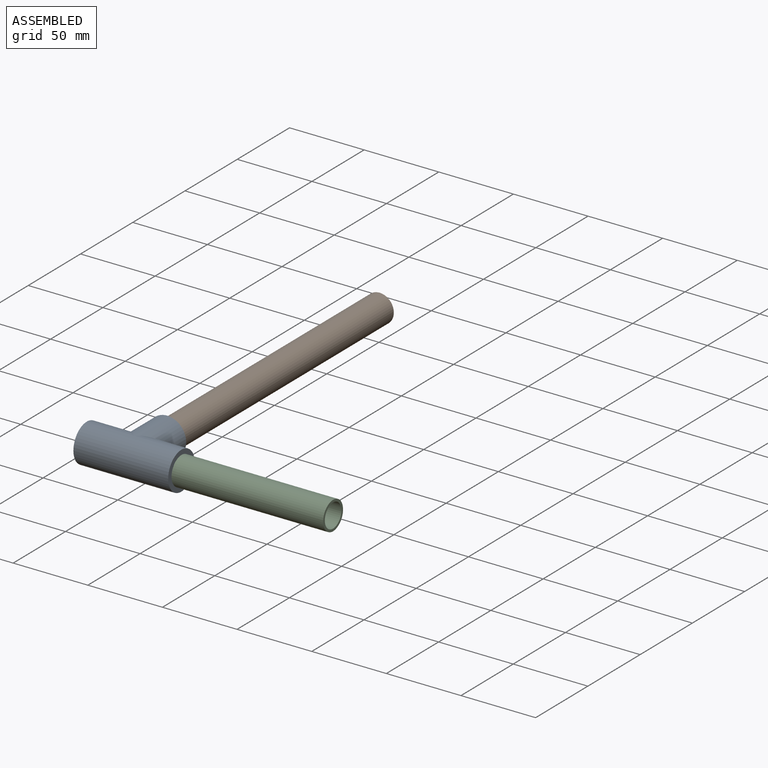
[diagram: assembled view]
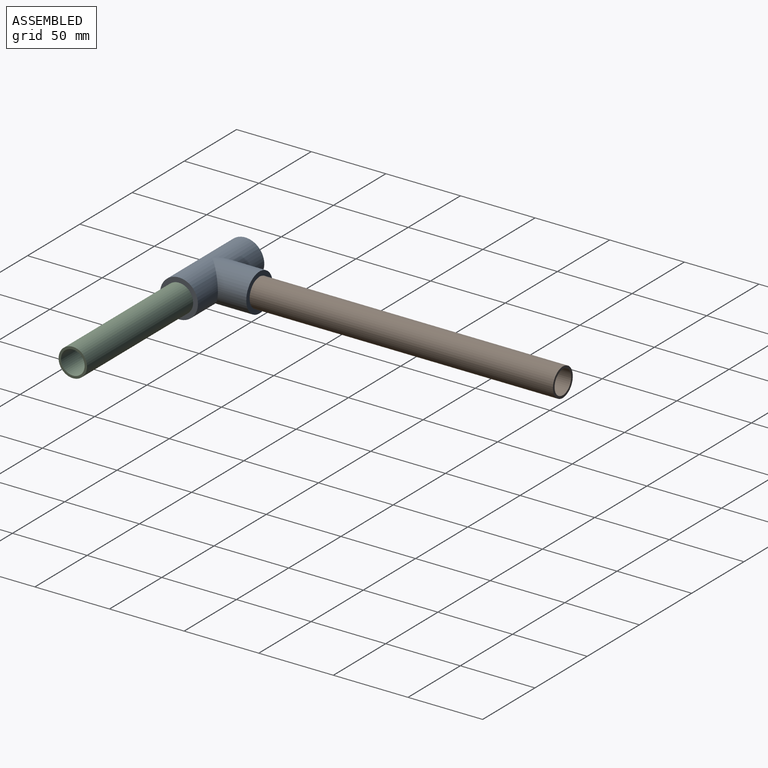
[diagram: assembled view, second angle]
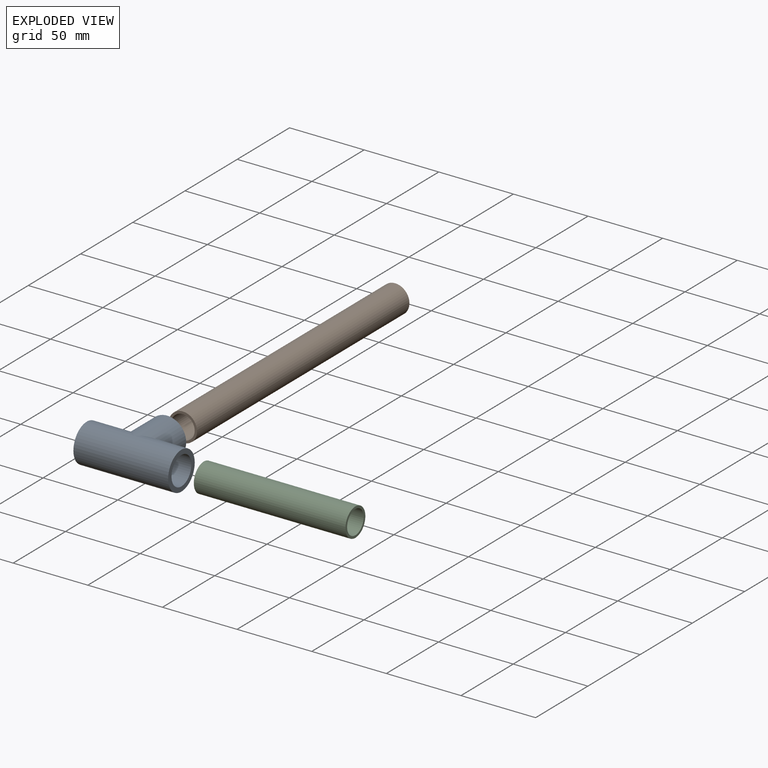
[diagram: exploded view]
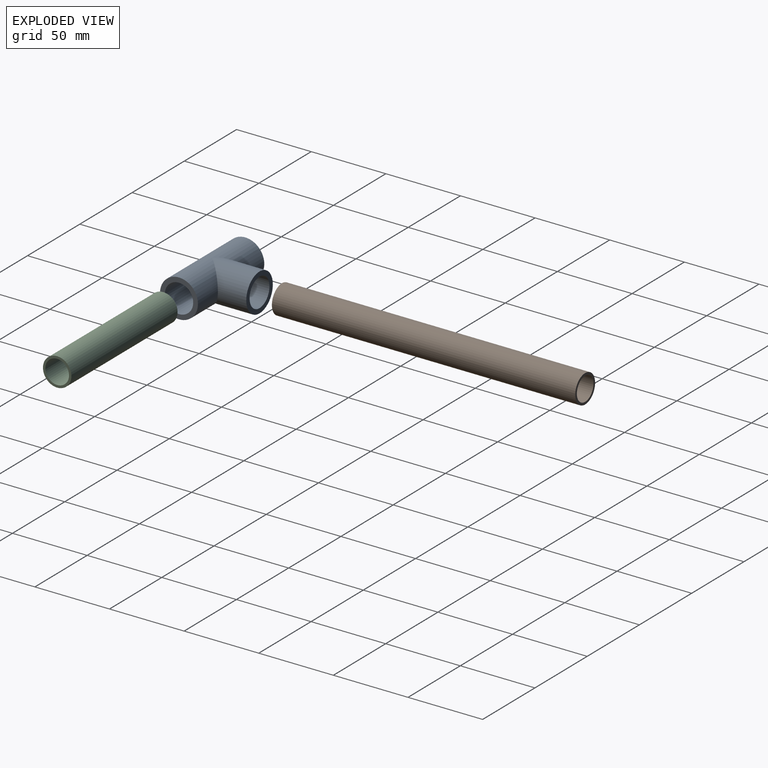
[diagram: exploded view, second angle]
ASSEMBLY  parts=3 mates=2
PART A: 7 faces, bbox 63.5x25.4x44.5 mm
  f0: plane 25.4x25.4mm, normal (1,0,0), area 221.7mm2, adj f3,f5
  f1: plane 25.4x25.4mm, normal (0,0,1), area 221.7mm2, adj f4,f6
  f2: plane 25.4x25.4mm, normal (-1,0,0), area 221.7mm2, adj f3,f5
  f3: cylinder r=12.7mm len=63.5mm, axis (1,0,0), area 4421.9mm2, adj f0,f2,f4
  f4: cylinder r=12.7mm len=31.75mm, axis (0,0,-1), area 1888.4mm2, adj f1,f3
  f5: cylinder r=9.53mm len=63.5mm, axis (1,0,0), area 3437.4mm2, adj f0,f2,f6
  f6: cylinder r=9.53mm len=31.75mm, axis (0,0,-1), area 1537.3mm2, adj f1,f5
PART B: 4 faces, bbox 19.1x203.2x19.1 mm
  f0: cylinder r=7.94mm len=203.2mm, axis (0,1,0), area 10134.1mm2, adj f2,f3
  f1: cylinder r=9.53mm len=203.2mm, axis (0,1,0), area 12161mm2, adj f2,f3
  f2: plane 19.05x19.05mm, normal (0,-1,0), area 87.1mm2, adj f0,f1
  f3: plane 19.05x19.05mm, normal (0,1,0), area 87.1mm2, adj f0,f1
PART C: 4 faces, bbox 19.1x101.6x19.1 mm
  f0: cylinder r=7.94mm len=101.6mm, axis (0,1,0), area 5067.1mm2, adj f2,f3
  f1: cylinder r=9.53mm len=101.6mm, axis (0,1,0), area 6080.5mm2, adj f2,f3
  f2: plane 19.05x19.05mm, normal (0,-1,0), area 87.1mm2, adj f0,f1
  f3: plane 19.05x19.05mm, normal (0,1,0), area 87.1mm2, adj f0,f1
PLACE A rot(axis=(-1,0,0),90deg) t=(114.46,-291.62,-78.57)mm
PLACE B t=(191.58,-43.97,-31.69)mm
PLACE C rot(axis=(0.71,0.71,0),180deg) t=(279.56,-233.56,-100.05)mm
MATE fastened A.f4 <-> B.f0  axis (0,1,0) through (146.21,-247.17,-65.87)mm
MATE fastened C.f0 <-> A.f3  axis (-1,0,0) through (177.96,-278.92,-65.87)mm
